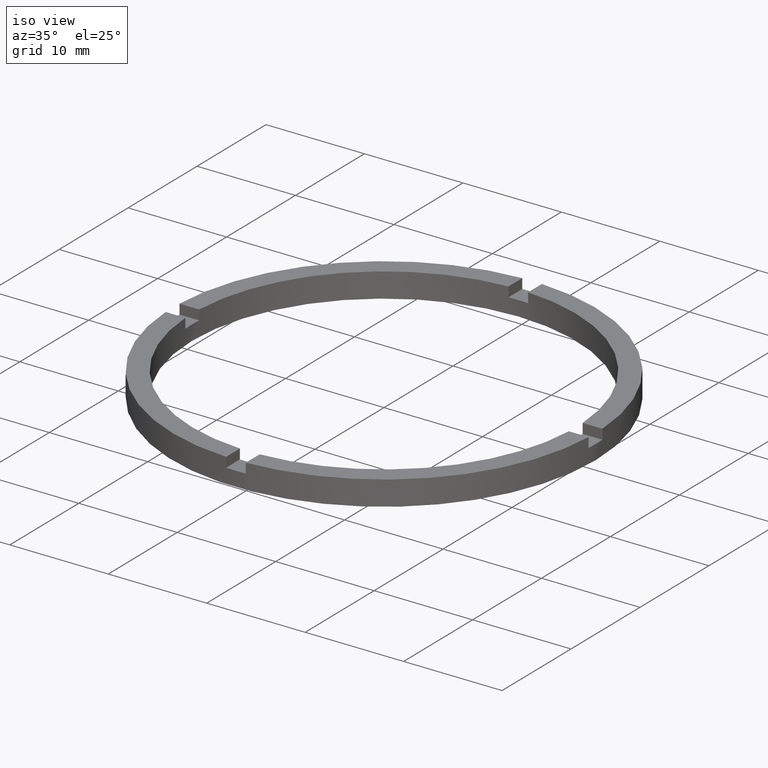
[diagram: clean part render]
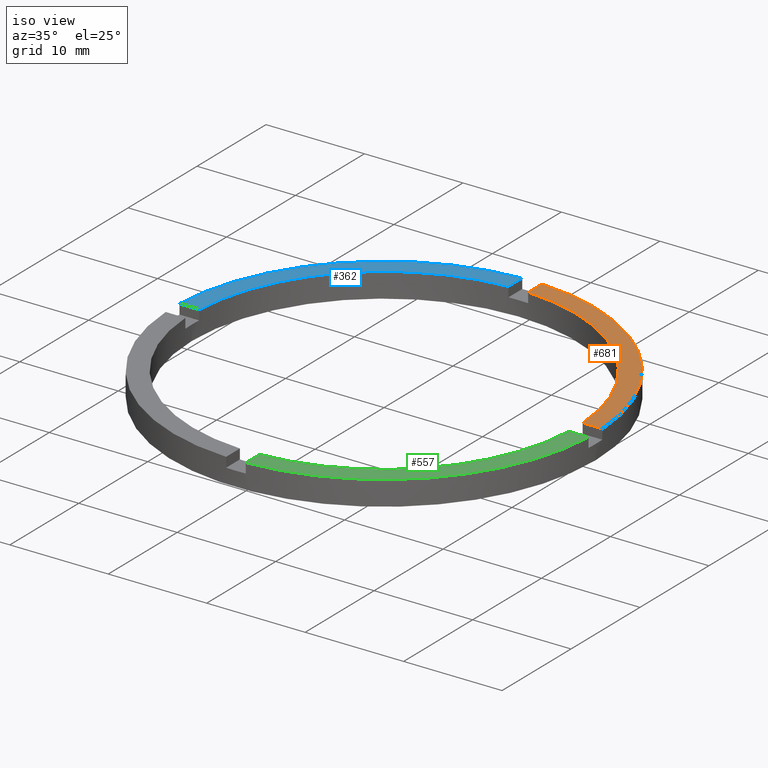
[diagram: same view with three faces highlighted in distinct colors, each labeled with its STEP entity id]
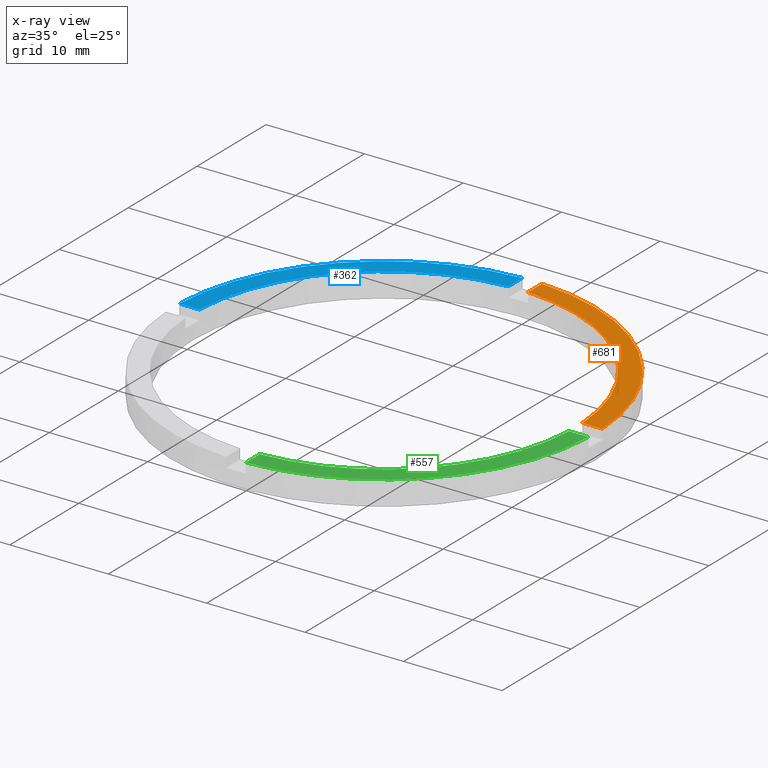
[diagram: x-ray of the same camera — body ghosted, the three highlighted faces saturated]
A machine part, iso view with three faces highlighted in distinct colors.
The next image is the same camera in x-ray (body ghosted, the three faces saturated) — at least one of them is partly hidden behind the body in this view.
Their STEP definitions:

[orange] entity #681 — the highlighted planar face has unit normal (0, 0, 1).
#34 = DIRECTION ( 'NONE',  ( -1.000000000000000000, -4.336808689942018352E-17, -0.000000000000000000 ) ) ;
#43 = AXIS2_PLACEMENT_3D ( 'NONE', #737, #266, #215 ) ;
#56 = DIRECTION ( 'NONE',  ( 1.000000000000000000, 0.000000000000000000, 0.000000000000000000 ) ) ;
#86 = VERTEX_POINT ( 'NONE', #446 ) ;
#91 = ORIENTED_EDGE ( 'NONE', *, *, #217, .T. ) ;
#101 = VERTEX_POINT ( 'NONE', #468 ) ;
#105 = VERTEX_POINT ( 'NONE', #155 ) ;
#117 = AXIS2_PLACEMENT_3D ( 'NONE', #202, #246, #56 ) ;
#147 = DIRECTION ( 'NONE',  ( 0.000000000000000000, 1.000000000000000000, 0.000000000000000000 ) ) ;
#155 = CARTESIAN_POINT ( 'NONE',  ( 21.47673159491453632, 0.9999999999998419042, 2.500000000000000000 ) ) ;
#178 = CIRCLE ( 'NONE', #746, 21.50000000000000000 ) ;
#188 = ORIENTED_EDGE ( 'NONE', *, *, #304, .F. ) ;
#202 = CARTESIAN_POINT ( 'NONE',  ( 0.000000000000000000, 0.000000000000000000, 2.500000000000000000 ) ) ;
#211 = VECTOR ( 'NONE', #34, 1000.000000000000000 ) ;
#215 = DIRECTION ( 'NONE',  ( 1.000000000000000000, 0.000000000000000000, -0.000000000000000000 ) ) ;
#217 = EDGE_CURVE ( 'NONE', #105, #86, #178, .T. ) ;
#225 = CIRCLE ( 'NONE', #117, 19.50000000000000000 ) ;
#246 = DIRECTION ( 'NONE',  ( 0.000000000000000000, 0.000000000000000000, 1.000000000000000000 ) ) ;
#266 = DIRECTION ( 'NONE',  ( 0.000000000000000000, 0.000000000000000000, 1.000000000000000000 ) ) ;
#286 = FACE_OUTER_BOUND ( 'NONE', #712, .T. ) ;
#293 = CARTESIAN_POINT ( 'NONE',  ( 0.9999999999999744649, 19.47434209415044748, 2.500000000000000000 ) ) ;
#299 = CARTESIAN_POINT ( 'NONE',  ( 0.000000000000000000, 0.000000000000000000, 2.500000000000000000 ) ) ;
#301 = EDGE_CURVE ( 'NONE', #367, #86, #777, .T. ) ;
#304 = EDGE_CURVE ( 'NONE', #101, #367, #225, .T. ) ;
#344 = ORIENTED_EDGE ( 'NONE', *, *, #301, .F. ) ;
#364 = DIRECTION ( 'NONE',  ( 0.000000000000000000, 0.000000000000000000, 1.000000000000000000 ) ) ;
#367 = VERTEX_POINT ( 'NONE', #293 ) ;
#446 = CARTESIAN_POINT ( 'NONE',  ( 0.9999999999999744649, 21.47673159491452921, 2.500000000000000000 ) ) ;
#449 = DIRECTION ( 'NONE',  ( 1.000000000000000000, 0.000000000000000000, 0.000000000000000000 ) ) ;
#468 = CARTESIAN_POINT ( 'NONE',  ( 19.47434209415045459, 0.9999999999998419042, 2.500000000000000000 ) ) ;
#479 = LINE ( 'NONE', #585, #211 ) ;
#522 = VECTOR ( 'NONE', #147, 1000.000000000000000 ) ;
#585 = CARTESIAN_POINT ( 'NONE',  ( 11.49999999999999289, 0.9999999999998414602, 2.500000000000000000 ) ) ;
#591 = EDGE_CURVE ( 'NONE', #105, #101, #479, .T. ) ;
#627 = ORIENTED_EDGE ( 'NONE', *, *, #591, .F. ) ;
#630 = PLANE ( 'NONE',  #43 ) ;
#681 = ADVANCED_FACE ( 'NONE', ( #286 ), #630, .T. ) ;
#686 = CARTESIAN_POINT ( 'NONE',  ( 0.9999999999999744649, 11.49999999999999822, 2.500000000000000000 ) ) ;
#712 = EDGE_LOOP ( 'NONE', ( #344, #188, #627, #91 ) ) ;
#737 = CARTESIAN_POINT ( 'NONE',  ( 0.000000000000000000, 0.000000000000000000, 2.500000000000000000 ) ) ;
#746 = AXIS2_PLACEMENT_3D ( 'NONE', #299, #364, #449 ) ;
#777 = LINE ( 'NONE', #686, #522 ) ;

[blue] entity #362 — the highlighted planar face has unit normal (0, 0, 1).
#28 = CIRCLE ( 'NONE', #783, 21.50000000000000000 ) ;
#30 = CARTESIAN_POINT ( 'NONE',  ( -19.47434209415044748, 0.9999999999999753530, 2.500000000000000000 ) ) ;
#50 = EDGE_CURVE ( 'NONE', #149, #697, #397, .T. ) ;
#111 = EDGE_LOOP ( 'NONE', ( #457, #721, #142, #389 ) ) ;
#127 = DIRECTION ( 'NONE',  ( 1.000000000000000000, 0.000000000000000000, 0.000000000000000000 ) ) ;
#142 = ORIENTED_EDGE ( 'NONE', *, *, #565, .F. ) ;
#149 = VERTEX_POINT ( 'NONE', #401 ) ;
#165 = VERTEX_POINT ( 'NONE', #493 ) ;
#181 = VECTOR ( 'NONE', #294, 1000.000000000000000 ) ;
#183 = EDGE_CURVE ( 'NONE', #165, #149, #411, .T. ) ;
#203 = AXIS2_PLACEMENT_3D ( 'NONE', #550, #638, #722 ) ;
#224 = VECTOR ( 'NONE', #478, 1000.000000000000000 ) ;
#230 = CARTESIAN_POINT ( 'NONE',  ( -1.000000000000025535, 11.49999999999999822, 2.500000000000000000 ) ) ;
#252 = DIRECTION ( 'NONE',  ( 1.000000000000000000, 0.000000000000000000, 0.000000000000000000 ) ) ;
#294 = DIRECTION ( 'NONE',  ( -0.000000000000000000, -1.000000000000000000, -0.000000000000000000 ) ) ;
#305 = CARTESIAN_POINT ( 'NONE',  ( 0.000000000000000000, 0.000000000000000000, 2.500000000000000000 ) ) ;
#362 = ADVANCED_FACE ( 'NONE', ( #778 ), #620, .T. ) ;
#376 = CARTESIAN_POINT ( 'NONE',  ( 0.000000000000000000, 0.000000000000000000, 2.500000000000000000 ) ) ;
#389 = ORIENTED_EDGE ( 'NONE', *, *, #50, .F. ) ;
#397 = CIRCLE ( 'NONE', #593, 19.50000000000000000 ) ;
#401 = CARTESIAN_POINT ( 'NONE',  ( -1.000000000000025535, 19.47434209415044748, 2.500000000000000000 ) ) ;
#411 = LINE ( 'NONE', #230, #181 ) ;
#435 = DIRECTION ( 'NONE',  ( 0.000000000000000000, 0.000000000000000000, 1.000000000000000000 ) ) ;
#457 = ORIENTED_EDGE ( 'NONE', *, *, #183, .F. ) ;
#471 = CARTESIAN_POINT ( 'NONE',  ( -11.50000000000018296, 0.9999999999999767963, 2.500000000000000000 ) ) ;
#478 = DIRECTION ( 'NONE',  ( -1.000000000000000000, -1.734723475976807341E-16, 0.000000000000000000 ) ) ;
#487 = LINE ( 'NONE', #471, #224 ) ;
#493 = CARTESIAN_POINT ( 'NONE',  ( -1.000000000000025535, 21.47673159491452566, 2.500000000000000000 ) ) ;
#550 = CARTESIAN_POINT ( 'NONE',  ( 0.000000000000000000, 0.000000000000000000, 2.500000000000000000 ) ) ;
#565 = EDGE_CURVE ( 'NONE', #697, #668, #487, .T. ) ;
#566 = DIRECTION ( 'NONE',  ( 0.000000000000000000, 0.000000000000000000, 1.000000000000000000 ) ) ;
#593 = AXIS2_PLACEMENT_3D ( 'NONE', #376, #566, #127 ) ;
#620 = PLANE ( 'NONE',  #203 ) ;
#638 = DIRECTION ( 'NONE',  ( 0.000000000000000000, 0.000000000000000000, 1.000000000000000000 ) ) ;
#657 = CARTESIAN_POINT ( 'NONE',  ( -21.47673159491452921, 0.9999999999999751310, 2.500000000000000000 ) ) ;
#668 = VERTEX_POINT ( 'NONE', #657 ) ;
#697 = VERTEX_POINT ( 'NONE', #30 ) ;
#721 = ORIENTED_EDGE ( 'NONE', *, *, #738, .T. ) ;
#722 = DIRECTION ( 'NONE',  ( 1.000000000000000000, 0.000000000000000000, -0.000000000000000000 ) ) ;
#738 = EDGE_CURVE ( 'NONE', #165, #668, #28, .T. ) ;
#778 = FACE_OUTER_BOUND ( 'NONE', #111, .T. ) ;
#783 = AXIS2_PLACEMENT_3D ( 'NONE', #305, #435, #252 ) ;

[green] entity #557 — the highlighted planar face has unit normal (0, 0, 1).
#8 = FACE_OUTER_BOUND ( 'NONE', #625, .T. ) ;
#29 = DIRECTION ( 'NONE',  ( 1.000000000000000000, 4.336808689942018352E-17, 0.000000000000000000 ) ) ;
#31 = DIRECTION ( 'NONE',  ( 0.000000000000000000, 0.000000000000000000, 1.000000000000000000 ) ) ;
#65 = CARTESIAN_POINT ( 'NONE',  ( 0.9999999999998373523, -11.50000000000017764, 2.500000000000000000 ) ) ;
#70 = DIRECTION ( 'NONE',  ( 0.000000000000000000, 0.000000000000000000, 1.000000000000000000 ) ) ;
#78 = ORIENTED_EDGE ( 'NONE', *, *, #689, .F. ) ;
#93 = EDGE_CURVE ( 'NONE', #634, #608, #167, .T. ) ;
#94 = ORIENTED_EDGE ( 'NONE', *, *, #476, .T. ) ;
#112 = VERTEX_POINT ( 'NONE', #412 ) ;
#120 = ORIENTED_EDGE ( 'NONE', *, *, #93, .F. ) ;
#125 = ORIENTED_EDGE ( 'NONE', *, *, #459, .F. ) ;
#137 = DIRECTION ( 'NONE',  ( 0.000000000000000000, 0.000000000000000000, 1.000000000000000000 ) ) ;
#161 = VERTEX_POINT ( 'NONE', #545 ) ;
#167 = LINE ( 'NONE', #637, #441 ) ;
#200 = DIRECTION ( 'NONE',  ( 1.000000000000000000, 0.000000000000000000, 0.000000000000000000 ) ) ;
#229 = CIRCLE ( 'NONE', #238, 21.50000000000000000 ) ;
#238 = AXIS2_PLACEMENT_3D ( 'NONE', #771, #31, #578 ) ;
#276 = CARTESIAN_POINT ( 'NONE',  ( 0.000000000000000000, 0.000000000000000000, 2.500000000000000000 ) ) ;
#284 = PLANE ( 'NONE',  #532 ) ;
#324 = DIRECTION ( 'NONE',  ( -1.301042606982605321E-16, 1.000000000000000000, -0.000000000000000000 ) ) ;
#412 = CARTESIAN_POINT ( 'NONE',  ( 0.9999999999998386846, -21.47673159491453632, 2.500000000000000000 ) ) ;
#441 = VECTOR ( 'NONE', #29, 1000.000000000000000 ) ;
#459 = EDGE_CURVE ( 'NONE', #161, #634, #511, .T. ) ;
#464 = AXIS2_PLACEMENT_3D ( 'NONE', #599, #137, #200 ) ;
#475 = DIRECTION ( 'NONE',  ( 1.000000000000000000, 0.000000000000000000, -0.000000000000000000 ) ) ;
#476 = EDGE_CURVE ( 'NONE', #112, #608, #229, .T. ) ;
#511 = CIRCLE ( 'NONE', #464, 19.50000000000000000 ) ;
#532 = AXIS2_PLACEMENT_3D ( 'NONE', #276, #70, #475 ) ;
#541 = CARTESIAN_POINT ( 'NONE',  ( 19.47434209415044037, -1.000000000000158096, 2.500000000000000000 ) ) ;
#544 = LINE ( 'NONE', #65, #563 ) ;
#545 = CARTESIAN_POINT ( 'NONE',  ( 0.9999999999998384625, -19.47434209415045814, 2.500000000000000000 ) ) ;
#557 = ADVANCED_FACE ( 'NONE', ( #8 ), #284, .T. ) ;
#563 = VECTOR ( 'NONE', #324, 1000.000000000000000 ) ;
#578 = DIRECTION ( 'NONE',  ( 1.000000000000000000, 0.000000000000000000, 0.000000000000000000 ) ) ;
#599 = CARTESIAN_POINT ( 'NONE',  ( 0.000000000000000000, 0.000000000000000000, 2.500000000000000000 ) ) ;
#608 = VERTEX_POINT ( 'NONE', #654 ) ;
#625 = EDGE_LOOP ( 'NONE', ( #120, #125, #78, #94 ) ) ;
#634 = VERTEX_POINT ( 'NONE', #541 ) ;
#637 = CARTESIAN_POINT ( 'NONE',  ( 11.49999999999999289, -1.000000000000158540, 2.500000000000000000 ) ) ;
#654 = CARTESIAN_POINT ( 'NONE',  ( 21.47673159491452211, -1.000000000000158096, 2.500000000000000000 ) ) ;
#689 = EDGE_CURVE ( 'NONE', #112, #161, #544, .T. ) ;
#771 = CARTESIAN_POINT ( 'NONE',  ( 0.000000000000000000, 0.000000000000000000, 2.500000000000000000 ) ) ;